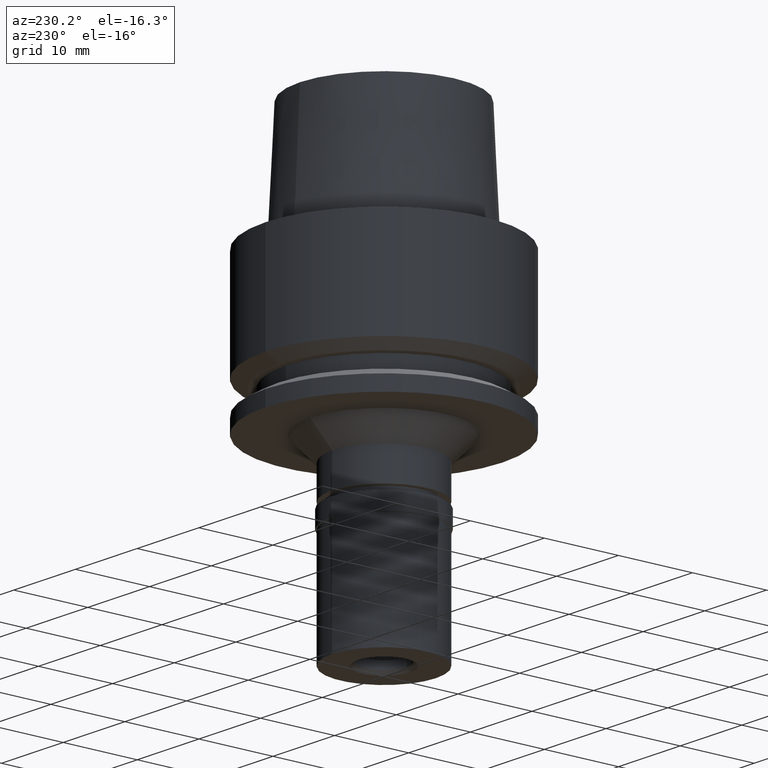
[diagram: clean part render]
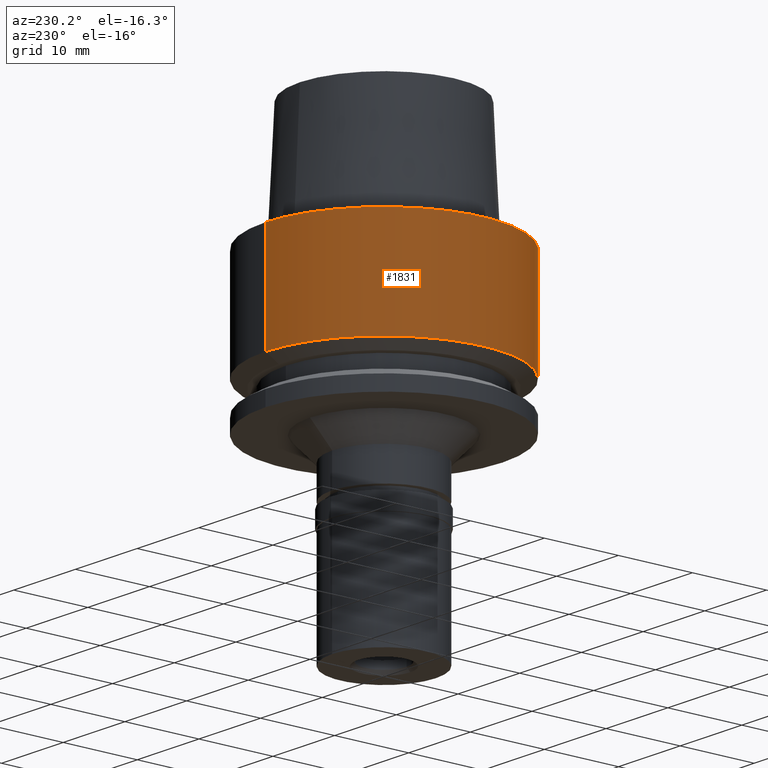
[diagram: same view with one face highlighted and labeled with its STEP entity id]
A machine part, auxiliary view. The second image highlights one B-rep face of the part: STEP entity #1831.
In plain terms, the highlighted cylindrical surface (partial cylindrical patch) has radius 16 mm, axis along (0, 0, 1).
Its self-contained STEP definition (entity closure, byte-faithful):
#171 = VERTEX_POINT ( 'NONE', #631 ) ;
#227 = EDGE_CURVE ( 'NONE', #171, #1217, #2597, .T. ) ;
#272 = CYLINDRICAL_SURFACE ( 'NONE', #2209, 16.00000000000000000 ) ;
#281 = AXIS2_PLACEMENT_3D ( 'NONE', #1272, #2492, #1696 ) ;
#306 = CARTESIAN_POINT ( 'NONE',  ( 0.0000000000000000000, 0.0000000000000000000, -43.85000000000000142 ) ) ;
#328 = DIRECTION ( 'NONE',  ( 0.0000000000000000000, 0.0000000000000000000, -1.000000000000000000 ) ) ;
#562 = DIRECTION ( 'NONE',  ( 0.0000000000000000000, 6.772870976582999535E-14, -1.000000000000000000 ) ) ;
#629 = VECTOR ( 'NONE', #2515, 1000.000000000000000 ) ;
#631 = CARTESIAN_POINT ( 'NONE',  ( 0.0000000000000000000, -16.00000000000000000, -8.526512829120999020E-14 ) ) ;
#725 = CARTESIAN_POINT ( 'NONE',  ( 0.0000000000000000000, -16.00000000000000000, -5.210646728906999149E-14 ) ) ;
#807 = CARTESIAN_POINT ( 'NONE',  ( 0.0000000000000000000, 16.00000000000000000, -13.97927405783999966 ) ) ;
#848 = CARTESIAN_POINT ( 'NONE',  ( 0.0000000000000000000, 16.00000000000000000, -5.210646728906999149E-14 ) ) ;
#889 = ORIENTED_EDGE ( 'NONE', *, *, #227, .F. ) ;
#894 = VERTEX_POINT ( 'NONE', #807 ) ;
#951 = DIRECTION ( 'NONE',  ( 0.0000000000000000000, 0.0000000000000000000, 1.000000000000000000 ) ) ;
#958 = ORIENTED_EDGE ( 'NONE', *, *, #2135, .T. ) ;
#1006 = CARTESIAN_POINT ( 'NONE',  ( 0.0000000000000000000, 16.00000000000000000, -8.526512829120999020E-14 ) ) ;
#1135 = ORIENTED_EDGE ( 'NONE', *, *, #1440, .T. ) ;
#1136 = DIRECTION ( 'NONE',  ( 0.0000000000000000000, 1.000000000000000000, 0.0000000000000000000 ) ) ;
#1217 = VERTEX_POINT ( 'NONE', #1613 ) ;
#1272 = CARTESIAN_POINT ( 'NONE',  ( 0.0000000000000000000, 0.0000000000000000000, -13.97927405783999966 ) ) ;
#1424 = CIRCLE ( 'NONE', #281, 16.00000000000000000 ) ;
#1440 = EDGE_CURVE ( 'NONE', #171, #2061, #2115, .T. ) ;
#1576 = CARTESIAN_POINT ( 'NONE',  ( 0.0000000000000000000, 0.0000000000000000000, -8.526512829120999020E-14 ) ) ;
#1613 = CARTESIAN_POINT ( 'NONE',  ( 0.0000000000000000000, -16.00000000000000000, -13.97927405783999966 ) ) ;
#1696 = DIRECTION ( 'NONE',  ( 0.0000000000000000000, 1.000000000000000000, 0.0000000000000000000 ) ) ;
#1831 = ADVANCED_FACE ( 'NONE', ( #2146 ), #272, .T. ) ;
#1912 = LINE ( 'NONE', #848, #629 ) ;
#2036 = AXIS2_PLACEMENT_3D ( 'NONE', #1576, #328, #2188 ) ;
#2061 = VERTEX_POINT ( 'NONE', #1006 ) ;
#2100 = EDGE_CURVE ( 'NONE', #894, #1217, #1424, .T. ) ;
#2115 = CIRCLE ( 'NONE', #2036, 16.00000000000000000 ) ;
#2135 = EDGE_CURVE ( 'NONE', #2061, #894, #1912, .T. ) ;
#2146 = FACE_OUTER_BOUND ( 'NONE', #2577, .T. ) ;
#2176 = VECTOR ( 'NONE', #562, 1000.000000000000000 ) ;
#2185 = ORIENTED_EDGE ( 'NONE', *, *, #2100, .T. ) ;
#2188 = DIRECTION ( 'NONE',  ( 0.0000000000000000000, -1.000000000000000000, 0.0000000000000000000 ) ) ;
#2209 = AXIS2_PLACEMENT_3D ( 'NONE', #306, #951, #1136 ) ;
#2492 = DIRECTION ( 'NONE',  ( 0.0000000000000000000, 0.0000000000000000000, 1.000000000000000000 ) ) ;
#2515 = DIRECTION ( 'NONE',  ( 0.0000000000000000000, -6.772870976582999535E-14, -1.000000000000000000 ) ) ;
#2577 = EDGE_LOOP ( 'NONE', ( #2185, #889, #1135, #958 ) ) ;
#2597 = LINE ( 'NONE', #725, #2176 ) ;